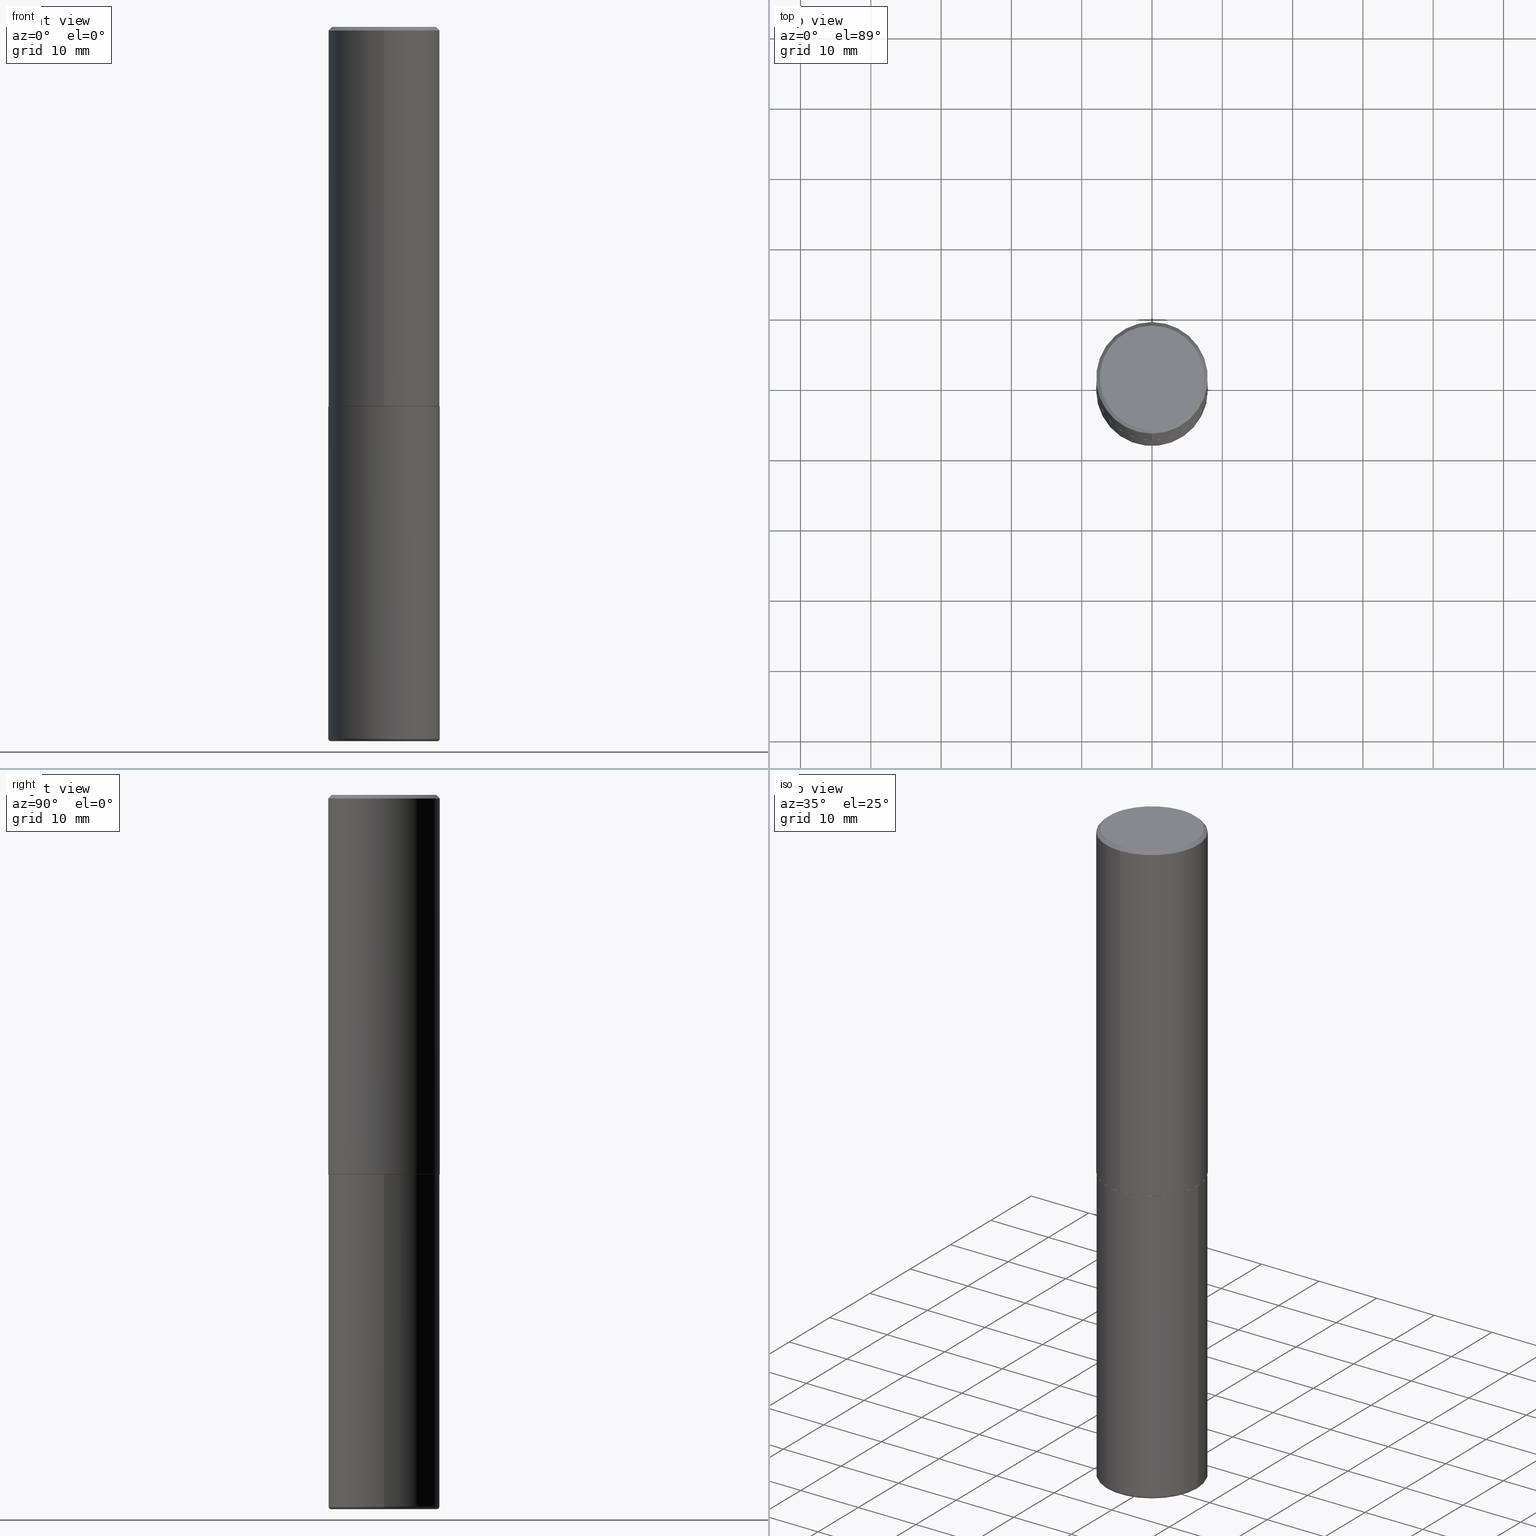
[diagram: canonical four-view strip — front | top / right | iso, engineering-drawing reading convention]
A machine part, canonical four-view strip (front | top / right | iso — engineering-drawing reading convention). The complete STEP part file that produces these views, byte-faithful:
ISO-10303-21;
HEADER;
FILE_DESCRIPTION (( 'STEP AP203' ),
    '1' );
FILE_NAME ('37580.STEP',
    '2024-03-02T04:50:06',
    ( '' ),
    ( '' ),
    'SwSTEP 2.0',
    'SolidWorks 2023',
    '' );
FILE_SCHEMA (( 'CONFIG_CONTROL_DESIGN' ));
ENDSEC;

DATA;
#1 = ORIENTED_EDGE ( 'NONE', *, *, #302, .F. ) ;
#2 = APPROVAL_STATUS ( 'not_yet_approved' ) ;
#3 = AXIS2_PLACEMENT_3D ( 'NONE', #131, #319, #252 ) ;
#4 = EDGE_LOOP ( 'NONE', ( #380, #281, #353, #29 ) ) ;
#5 = CC_DESIGN_PERSON_AND_ORGANIZATION_ASSIGNMENT ( #107, #232, ( #214 ) ) ;
#6 = CC_DESIGN_DATE_AND_TIME_ASSIGNMENT ( #393, #363, ( #15 ) ) ;
#7 = VERTEX_POINT ( 'NONE', #191 ) ;
#8 = PERSON_AND_ORGANIZATION_ROLE ( 'creator' ) ;
#9 = CARTESIAN_POINT ( 'NONE',  ( 5.192866564986985411E-29, -7.417781183046251262E-15, -2.123999999999999666 ) ) ;
#10 = DIMENSIONAL_EXPONENTS ( 1.000000000000000000, 0.000000000000000000, 0.000000000000000000, 0.000000000000000000, 0.000000000000000000, 0.000000000000000000, 0.000000000000000000 ) ;
#11 = ORIENTED_EDGE ( 'NONE', *, *, #367, .F. ) ;
#12 = VECTOR ( 'NONE', #348, 39.37007874015748143 ) ;
#13 = AXIS2_PLACEMENT_3D ( 'NONE', #9, #266, #390 ) ;
#14 = CARTESIAN_POINT ( 'NONE',  ( 9.745193192647769069E-29, -1.391355313528993407E-14, -3.984999999999999876 ) ) ;
#15 = PRODUCT_DEFINITION ( 'UNKNOWN', '', #214, #398 ) ;
#16 = DIRECTION ( 'NONE',  ( -6.982962677686266711E-15, -1.000000000000000000, 3.491481338843145583E-15 ) ) ;
#17 = CLOSED_SHELL ( 'NONE', ( #227, #181, #61, #386, #153, #185 ) ) ;
#18 = LINE ( 'NONE', #182, #309 ) ;
#19 = AXIS2_PLACEMENT_3D ( 'NONE', #172, #49, #148 ) ;
#20 = PRODUCT_DEFINITION_SHAPE ( 'NONE', 'NONE',  #15 ) ;
#21 = DIRECTION ( 'NONE',  ( -2.444852431726452894E-29, 3.492364022149836358E-15, 1.000000000000000000 ) ) ;
#22 = CARTESIAN_POINT ( 'NONE',  ( 9.745193192647769069E-29, -1.391355313528993407E-14, -3.984999999999999876 ) ) ;
#23 = CARTESIAN_POINT ( 'NONE',  ( -0.3125000000000000000, -8.446029440915494976E-15, -2.124999999999999556 ) ) ;
#24 = DIRECTION ( 'NONE',  ( 1.000000000000000000, -6.982962677686265133E-15, 0.000000000000000000 ) ) ;
#25 = CYLINDRICAL_SURFACE ( 'NONE', #146, 0.3125000000000000000 ) ;
#26 = DIRECTION ( 'NONE',  ( -2.445468806185136597E-29, 3.491481338843145583E-15, 1.000000000000000000 ) ) ;
#27 = ADVANCED_FACE ( 'NONE', ( #245 ), #92, .T. ) ;
#28 = APPLICATION_PROTOCOL_DEFINITION ( 'international standard', 'config_control_design', 1994, #46 ) ;
#29 = ORIENTED_EDGE ( 'NONE', *, *, #416, .T. ) ;
#30 = CONICAL_SURFACE ( 'NONE', #85, 0.3125000000000000000, 0.7853981633974471688 ) ;
#31 = FACE_OUTER_BOUND ( 'NONE', #68, .T. ) ;
#32 = DIRECTION ( 'NONE',  ( -6.982962677686265922E-15, -1.000000000000000000, 3.507991003100177457E-15 ) ) ;
#33 = DIRECTION ( 'NONE',  ( 2.444852431726452894E-29, -3.492364022149836358E-15, -1.000000000000000000 ) ) ;
#34 = EDGE_LOOP ( 'NONE', ( #329, #35, #129, #11 ) ) ;
#35 = ORIENTED_EDGE ( 'NONE', *, *, #162, .T. ) ;
#36 = CALENDAR_DATE ( 2024, 1, 3 ) ;
#37 = ORIENTED_EDGE ( 'NONE', *, *, #340, .F. ) ;
#38 = CC_DESIGN_APPROVAL ( #377, ( #214 ) ) ;
#39 = AXIS2_PLACEMENT_3D ( 'NONE', #157, #33, #283 ) ;
#40 = ORIENTED_EDGE ( 'NONE', *, *, #330, .F. ) ;
#41 = DIRECTION ( 'NONE',  ( 1.000000000000000000, -6.982962677686269077E-15, 0.000000000000000000 ) ) ;
#42 = ORIENTED_EDGE ( 'NONE', *, *, #103, .T. ) ;
#43 = DATE_AND_TIME ( #211, #263 ) ;
#44 = CLOSED_SHELL ( 'NONE', ( #170, #240, #324, #202, #267, #27, #402, #89 ) ) ;
#45 = AXIS2_PLACEMENT_3D ( 'NONE', #292, #300, #268 ) ;
#46 = APPLICATION_CONTEXT ( 'configuration controlled 3d designs of mechanical parts and assemblies' ) ;
#47 = PLANE ( 'NONE',  #156 ) ;
#48 =( GEOMETRIC_REPRESENTATION_CONTEXT ( 3 ) GLOBAL_UNCERTAINTY_ASSIGNED_CONTEXT ( ( #112 ) ) GLOBAL_UNIT_ASSIGNED_CONTEXT ( ( #417, #186, #183 ) ) REPRESENTATION_CONTEXT ( 'NONE', 'WORKASPACE' ) );
#49 = DIRECTION ( 'NONE',  ( -2.445468806185136597E-29, 3.491481338843145583E-15, 1.000000000000000000 ) ) ;
#50 = APPROVAL_STATUS ( 'not_yet_approved' ) ;
#51 = CIRCLE ( 'NONE', #45, 0.2974999999999999867 ) ;
#52 = FACE_OUTER_BOUND ( 'NONE', #392, .T. ) ;
#53 = AXIS2_PLACEMENT_3D ( 'NONE', #351, #154, #279 ) ;
#54 = CARTESIAN_POINT ( 'NONE',  ( -2.075300644325887493E-15, -0.2924999999999999822, 1.030311686326234990E-15 ) ) ;
#55 = PERSON_AND_ORGANIZATION ( #239, #298 ) ;
#56 = APPROVAL_PERSON_ORGANIZATION ( #291, #410, #259 ) ;
#57 = AXIS2_PLACEMENT_3D ( 'NONE', #117, #84, #304 ) ;
#58 = EDGE_CURVE ( 'NONE', #359, #189, #371, .T. ) ;
#59 = DIRECTION ( 'NONE',  ( 1.000000000000000000, -6.982962677686265133E-15, 0.000000000000000000 ) ) ;
#60 = DIRECTION ( 'NONE',  ( -2.444852431726452614E-29, 3.492364022149836358E-15, 1.000000000000000000 ) ) ;
#61 = ADVANCED_FACE ( 'NONE', ( #415 ), #91, .F. ) ;
#62 = ORIENTED_EDGE ( 'NONE', *, *, #246, .F. ) ;
#63 = APPROVAL ( #50, 'UNSPECIFIED' ) ;
#64 = ORIENTED_EDGE ( 'NONE', *, *, #162, .F. ) ;
#65 = EDGE_CURVE ( 'NONE', #151, #383, #412, .T. ) ;
#66 = LOCAL_TIME ( 23, 50, 6.000000000000000000, #256 ) ;
#67 =( LENGTH_UNIT ( ) NAMED_UNIT ( * ) SI_UNIT ( $, .METRE. ) );
#68 = EDGE_LOOP ( 'NONE', ( #76, #70, #258, #37 ) ) ;
#69 = ORIENTED_EDGE ( 'NONE', *, *, #302, .T. ) ;
#70 = ORIENTED_EDGE ( 'NONE', *, *, #355, .T. ) ;
#71 = VERTEX_POINT ( 'NONE', #215 ) ;
#72 = APPROVAL_DATE_TIME ( #265, #410 ) ;
#73 = AXIS2_PLACEMENT_3D ( 'NONE', #407, #21, #147 ) ;
#74 = EDGE_LOOP ( 'NONE', ( #224, #389, #171, #345 ) ) ;
#75 = CALENDAR_DATE ( 2024, 1, 3 ) ;
#76 = ORIENTED_EDGE ( 'NONE', *, *, #230, .F. ) ;
#77 = EDGE_CURVE ( 'NONE', #383, #151, #236, .T. ) ;
#78 = APPROVAL_PERSON_ORGANIZATION ( #200, #377, #327 ) ;
#79 = AXIS2_PLACEMENT_3D ( 'NONE', #373, #339, #88 ) ;
#80 = DIRECTION ( 'NONE',  ( -2.445468806185136597E-29, 3.491481338843145583E-15, 1.000000000000000000 ) ) ;
#81 = EDGE_CURVE ( 'NONE', #395, #123, #385, .T. ) ;
#82 = DIRECTION ( 'NONE',  ( 2.444852431726452894E-29, -3.492364022149836358E-15, -1.000000000000000000 ) ) ;
#83 = APPROVAL_PERSON_ORGANIZATION ( #207, #63, #336 ) ;
#84 = DIRECTION ( 'NONE',  ( -2.444852431726452894E-29, 3.492364022149836358E-15, 1.000000000000000000 ) ) ;
#85 = AXIS2_PLACEMENT_3D ( 'NONE', #143, #82, #335 ) ;
#86 = PRODUCT ( '37580', '37580', '', ( #128 ) ) ;
#87 = CARTESIAN_POINT ( 'NONE',  ( 2.213340621892763743E-15, 0.3114999999999925606, -2.125000000000000888 ) ) ;
#88 = DIRECTION ( 'NONE',  ( -6.982962677686265922E-15, -1.000000000000000000, 3.496765431890253764E-15 ) ) ;
#89 = ADVANCED_FACE ( 'NONE', ( #187 ), #152, .F. ) ;
#90 = CARTESIAN_POINT ( 'NONE',  ( 0.000000000000000000, 0.000000000000000000, 0.000000000000000000 ) ) ;
#91 = PLANE ( 'NONE',  #3 ) ;
#92 = CONICAL_SURFACE ( 'NONE', #223, 0.3114999999999999991, 0.7853981633975507526 ) ;
#93 = DIRECTION ( 'NONE',  ( 1.000000000000000000, -6.982962677686266711E-15, 4.876176775795936353E-29 ) ) ;
#94 = VERTEX_POINT ( 'NONE', #328 ) ;
#95 = ORIENTED_EDGE ( 'NONE', *, *, #217, .T. ) ;
#96 = DIRECTION ( 'NONE',  ( -2.445468806185136597E-29, 3.491481338843145583E-15, 1.000000000000000000 ) ) ;
#97 = ORIENTED_EDGE ( 'NONE', *, *, #136, .T. ) ;
#98 = LOCAL_TIME ( 23, 50, 6.000000000000000000, #321 ) ;
#99 = AXIS2_PLACEMENT_3D ( 'NONE', #274, #408, #366 ) ;
#100 = CARTESIAN_POINT ( 'NONE',  ( 2.220446049250313475E-15, 0.3125000000000001665, -1.091363756921824478E-15 ) ) ;
#101 = ORIENTED_EDGE ( 'NONE', *, *, #102, .T. ) ;
#102 = EDGE_CURVE ( 'NONE', #94, #197, #394, .T. ) ;
#103 = EDGE_CURVE ( 'NONE', #189, #297, #299, .T. ) ;
#104 = ORIENTED_EDGE ( 'NONE', *, *, #77, .F. ) ;
#105 = CC_DESIGN_APPROVAL ( #410, ( #15 ) ) ;
#106 = AXIS2_PLACEMENT_3D ( 'NONE', #228, #163, #41 ) ;
#107 = PERSON_AND_ORGANIZATION ( #239, #298 ) ;
#108 = ORIENTED_EDGE ( 'NONE', *, *, #257, .F. ) ;
#109 = EDGE_CURVE ( 'NONE', #221, #123, #127, .T. ) ;
#110 = SHAPE_DEFINITION_REPRESENTATION ( #20, #411 ) ;
#111 = DIRECTION ( 'NONE',  ( -2.445468806185136597E-29, 3.491481338843145583E-15, 1.000000000000000000 ) ) ;
#112 = UNCERTAINTY_MEASURE_WITH_UNIT (LENGTH_MEASURE( 1.000000000000000082E-05 ), #417, 'distance_accuracy_value', 'NONE');
#113 = LOCAL_TIME ( 23, 50, 6.000000000000000000, #369 ) ;
#114 = DIRECTION ( 'NONE',  ( 1.000000000000000000, -6.982962677686265922E-15, 4.883557194083112340E-29 ) ) ;
#115 = AXIS2_PLACEMENT_3D ( 'NONE', #159, #375, #24 ) ;
#116 = CC_DESIGN_PERSON_AND_ORGANIZATION_ASSIGNMENT ( #137, #201, ( #15 ) ) ;
#117 = CARTESIAN_POINT ( 'NONE',  ( 5.195311417418712329E-29, -7.421273547068401324E-15, -2.124999999999999556 ) ) ;
#118 = DIRECTION ( 'NONE',  ( 5.024295867788576727E-15, 0.7071067811866224018, 0.7071067811864726327 ) ) ;
#119 = DIRECTION ( 'NONE',  ( -6.982962677686265133E-15, -1.000000000000000000, 3.492364022149836753E-15 ) ) ;
#120 = VECTOR ( 'NONE', #60, 39.37007874015748143 ) ;
#121 = CYLINDRICAL_SURFACE ( 'NONE', #99, 0.3125000000000000000 ) ;
#122 = DIRECTION ( 'NONE',  ( -2.445468806185136597E-29, 3.491481338843145583E-15, 1.000000000000000000 ) ) ;
#123 = VERTEX_POINT ( 'NONE', #295 ) ;
#124 = PLANE ( 'NONE',  #179 ) ;
#125 = EDGE_LOOP ( 'NONE', ( #219, #248 ) ) ;
#126 = AXIS2_PLACEMENT_3D ( 'NONE', #130, #122, #59 ) ;
#127 = CIRCLE ( 'NONE', #384, 0.3125000000000000000 ) ;
#128 = MECHANICAL_CONTEXT ( 'NONE', #46, 'mechanical' ) ;
#129 = ORIENTED_EDGE ( 'NONE', *, *, #314, .T. ) ;
#130 = CARTESIAN_POINT ( 'NONE',  ( 5.196621213143414147E-29, -7.419397845041682046E-15, -2.124999999999999556 ) ) ;
#131 = CARTESIAN_POINT ( 'NONE',  ( 5.196621213143414147E-29, -7.419397845041682046E-15, -2.124999999999999556 ) ) ;
#132 = DIRECTION ( 'NONE',  ( -2.444852431726452894E-29, 3.492364022149836358E-15, 1.000000000000000000 ) ) ;
#133 = CIRCLE ( 'NONE', #192, 0.01500000000000014690 ) ;
#134 = ORIENTED_EDGE ( 'NONE', *, *, #81, .F. ) ;
#135 = ORIENTED_EDGE ( 'NONE', *, *, #416, .F. ) ;
#136 = EDGE_CURVE ( 'NONE', #71, #395, #144, .T. ) ;
#137 = PERSON_AND_ORGANIZATION ( #239, #298 ) ;
#138 = EDGE_LOOP ( 'NONE', ( #362, #194 ) ) ;
#139 = AXIS2_PLACEMENT_3D ( 'NONE', #193, #160, #286 ) ;
#140 = APPLICATION_PROTOCOL_DEFINITION ( 'international standard', 'config_control_design', 1994, #199 ) ;
#141 = DIRECTION ( 'NONE',  ( -2.445468806185136877E-29, 3.491481338843145188E-15, 1.000000000000000000 ) ) ;
#142 = DIRECTION ( 'NONE',  ( 1.000000000000000000, -6.982962677686199657E-15, 0.000000000000000000 ) ) ;
#143 = CARTESIAN_POINT ( 'NONE',  ( 4.889704863452922148E-31, -6.984728044299695791E-17, -0.02000000000000006981 ) ) ;
#144 = CIRCLE ( 'NONE', #13, 0.3125000000000002776 ) ;
#145 = EDGE_CURVE ( 'NONE', #197, #94, #51, .T. ) ;
#146 = AXIS2_PLACEMENT_3D ( 'NONE', #90, #96, #93 ) ;
#147 = DIRECTION ( 'NONE',  ( -6.982962677686265133E-15, -1.000000000000000000, 3.492364022149836753E-15 ) ) ;
#148 = DIRECTION ( 'NONE',  ( 1.000000000000000000, -6.982962677686269077E-15, 0.000000000000000000 ) ) ;
#149 = DIRECTION ( 'NONE',  ( -6.982962677686265133E-15, -1.000000000000000000, 3.492364022149836358E-15 ) ) ;
#150 = DIRECTION ( 'NONE',  ( -6.982962677686265922E-15, -1.000000000000000000, 3.492364022149836358E-15 ) ) ;
#151 = VERTEX_POINT ( 'NONE', #397 ) ;
#152 = PLANE ( 'NONE',  #378 ) ;
#153 = ADVANCED_FACE ( 'NONE', ( #400 ), #352, .T. ) ;
#154 = DIRECTION ( 'NONE',  ( -2.444852431726452894E-29, 3.492364022149836358E-15, 1.000000000000000000 ) ) ;
#155 = CARTESIAN_POINT ( 'NONE',  ( 5.195311417418712329E-29, -7.421273547068401324E-15, -2.124999999999999556 ) ) ;
#156 = AXIS2_PLACEMENT_3D ( 'NONE', #210, #306, #238 ) ;
#157 = CARTESIAN_POINT ( 'NONE',  ( 4.889704863452922148E-31, -6.984728044299695791E-17, -0.02000000000000006981 ) ) ;
#158 = CARTESIAN_POINT ( 'NONE',  ( 9.745193192647769069E-29, -1.391355313528993407E-14, -3.984999999999999876 ) ) ;
#159 = CARTESIAN_POINT ( 'NONE',  ( 5.196621213143414147E-29, -7.419397845041682046E-15, -2.124999999999999556 ) ) ;
#160 = DIRECTION ( 'NONE',  ( -2.444852431726452894E-29, 3.492364022149836358E-15, 1.000000000000000000 ) ) ;
#161 = ORIENTED_EDGE ( 'NONE', *, *, #65, .F. ) ;
#162 = EDGE_CURVE ( 'NONE', #189, #359, #280, .T. ) ;
#163 = DIRECTION ( 'NONE',  ( -2.445468806185136597E-29, 3.491481338843145583E-15, 1.000000000000000000 ) ) ;
#164 = EDGE_LOOP ( 'NONE', ( #331, #42, #40, #226 ) ) ;
#165 = AXIS2_PLACEMENT_3D ( 'NONE', #22, #80, #114 ) ;
#166 = DIRECTION ( 'NONE',  ( -6.982962677686265133E-15, -1.000000000000000000, 3.496765431890256920E-15 ) ) ;
#167 = ORIENTED_EDGE ( 'NONE', *, *, #77, .T. ) ;
#168 = DATE_AND_TIME ( #388, #66 ) ;
#169 = CARTESIAN_POINT ( 'NONE',  ( -0.3125000000000000000, 2.220446049250313081E-15, -1.537167215704658232E-29 ) ) ;
#170 = ADVANCED_FACE ( 'NONE', ( #237 ), #282, .T. ) ;
#171 = ORIENTED_EDGE ( 'NONE', *, *, #136, .F. ) ;
#172 = CARTESIAN_POINT ( 'NONE',  ( 9.745193192647769069E-29, -1.391355313528993407E-14, -3.984999999999999876 ) ) ;
#173 = DATE_AND_TIME ( #364, #113 ) ;
#174 = DIRECTION ( 'NONE',  ( -2.444852431726452894E-29, 3.492364022149836358E-15, 1.000000000000000000 ) ) ;
#175 = CC_DESIGN_PERSON_AND_ORGANIZATION_ASSIGNMENT ( #55, #356, ( #86 ) ) ;
#176 = CARTESIAN_POINT ( 'NONE',  ( -2.150299018297948745E-46, 3.071607443834507134E-32, 8.795209847407834549E-18 ) ) ;
#177 = DIRECTION ( 'NONE',  ( 7.105427357601001859E-15, 1.000000000000000000, -3.491481338843145583E-15 ) ) ;
#178 = VECTOR ( 'NONE', #310, 39.37007874015748143 ) ;
#179 = AXIS2_PLACEMENT_3D ( 'NONE', #285, #413, #150 ) ;
#180 = CYLINDRICAL_SURFACE ( 'NONE', #275, 0.3125000000000001665 ) ;
#181 = ADVANCED_FACE ( 'NONE', ( #52 ), #337, .T. ) ;
#182 = CARTESIAN_POINT ( 'NONE',  ( -2.182175836776959136E-15, -0.3125000000000001665, 1.091363756921824478E-15 ) ) ;
#183 =( NAMED_UNIT ( * ) SI_UNIT ( $, .STERADIAN. ) SOLID_ANGLE_UNIT ( ) );
#184 = CIRCLE ( 'NONE', #73, 0.2924999999999999822 ) ;
#185 = ADVANCED_FACE ( 'NONE', ( #370 ), #47, .T. ) ;
#186 =( NAMED_UNIT ( * ) PLANE_ANGLE_UNIT ( ) SI_UNIT ( $, .RADIAN. ) );
#187 = FACE_OUTER_BOUND ( 'NONE', #138, .T. ) ;
#188 = DIRECTION ( 'NONE',  ( 0.000000000000000000, 0.000000000000000000, 1.000000000000000000 ) ) ;
#189 = VERTEX_POINT ( 'NONE', #368 ) ;
#190 = CARTESIAN_POINT ( 'NONE',  ( -2.143905624303602824E-15, -0.3125000000000000555, -0.01999999999999897693 ) ) ;
#191 = CARTESIAN_POINT ( 'NONE',  ( 2.112346210000095838E-15, 0.2924999999999999822, -1.012721266631419361E-15 ) ) ;
#192 = AXIS2_PLACEMENT_3D ( 'NONE', #303, #16, #142 ) ;
#193 = CARTESIAN_POINT ( 'NONE',  ( 5.195311417418712329E-29, -7.421273547068401324E-15, -2.124999999999999556 ) ) ;
#194 = ORIENTED_EDGE ( 'NONE', *, *, #230, .T. ) ;
#195 = APPROVAL_STATUS ( 'not_yet_approved' ) ;
#196 = EDGE_LOOP ( 'NONE', ( #134, #233, #326, #135 ) ) ;
#197 = VERTEX_POINT ( 'NONE', #276 ) ;
#198 = VECTOR ( 'NONE', #141, 39.37007874015748143 ) ;
#199 = APPLICATION_CONTEXT ( 'configuration controlled 3d designs of mechanical parts and assemblies' ) ;
#200 = PERSON_AND_ORGANIZATION ( #239, #298 ) ;
#201 = PERSON_AND_ORGANIZATION_ROLE ( 'creator' ) ;
#202 = ADVANCED_FACE ( 'NONE', ( #209 ), #30, .T. ) ;
#203 = EDGE_LOOP ( 'NONE', ( #287, #381 ) ) ;
#204 = DIRECTION ( 'NONE',  ( 6.982962677686265922E-15, 1.000000000000000000, -3.492364022149836358E-15 ) ) ;
#205 = COORDINATED_UNIVERSAL_TIME_OFFSET ( 5, 0, .BEHIND. ) ;
#206 = AXIS2_PLACEMENT_3D ( 'NONE', #243, #177, #374 ) ;
#207 = PERSON_AND_ORGANIZATION ( #239, #298 ) ;
#208 = CARTESIAN_POINT ( 'NONE',  ( 0.000000000000000000, 0.000000000000000000, 0.000000000000000000 ) ) ;
#209 = FACE_OUTER_BOUND ( 'NONE', #4, .T. ) ;
#210 = CARTESIAN_POINT ( 'NONE',  ( 9.781875224740546387E-29, -1.396592535537258233E-14, -4.000000000000000000 ) ) ;
#211 = CALENDAR_DATE ( 2024, 1, 3 ) ;
#212 = CARTESIAN_POINT ( 'NONE',  ( 0.000000000000000000, 0.000000000000000000, 0.000000000000000000 ) ) ;
#213 = DIRECTION ( 'NONE',  ( -4.937700262165053702E-15, -0.7071067811866175168, 0.7071067811864775177 ) ) ;
#214 = PRODUCT_DEFINITION_FORMATION_WITH_SPECIFIED_SOURCE ( 'ANY', '', #86, .NOT_KNOWN. ) ;
#215 = CARTESIAN_POINT ( 'NONE',  ( -2.182175836776908254E-15, -0.3125000000000077161, -2.123999999999998334 ) ) ;
#216 = AXIS2_PLACEMENT_3D ( 'NONE', #158, #26, #284 ) ;
#217 = EDGE_CURVE ( 'NONE', #197, #189, #247, .T. ) ;
#218 = CARTESIAN_POINT ( 'NONE',  ( 0.3125000000000000000, -9.601573681818640393E-15, -2.124999999999999556 ) ) ;
#219 = ORIENTED_EDGE ( 'NONE', *, *, #330, .T. ) ;
#220 = CARTESIAN_POINT ( 'NONE',  ( 2.220446049250340297E-15, 0.3124999999999928391, -2.124000000000000554 ) ) ;
#221 = VERTEX_POINT ( 'NONE', #332 ) ;
#222 = FACE_OUTER_BOUND ( 'NONE', #320, .T. ) ;
#223 = AXIS2_PLACEMENT_3D ( 'NONE', #155, #376, #32 ) ;
#224 = ORIENTED_EDGE ( 'NONE', *, *, #65, .T. ) ;
#225 = CIRCLE ( 'NONE', #53, 0.3125000000000000000 ) ;
#226 = ORIENTED_EDGE ( 'NONE', *, *, #314, .F. ) ;
#227 = ADVANCED_FACE ( 'NONE', ( #405 ), #121, .T. ) ;
#228 = CARTESIAN_POINT ( 'NONE',  ( 9.781875224740546387E-29, -1.396592535537258233E-14, -4.000000000000000000 ) ) ;
#229 = CC_DESIGN_PERSON_AND_ORGANIZATION_ASSIGNMENT ( #294, #8, ( #214 ) ) ;
#230 = EDGE_CURVE ( 'NONE', #261, #7, #184, .T. ) ;
#231 = AXIS2_PLACEMENT_3D ( 'NONE', #14, #111, #235 ) ;
#232 = PERSON_AND_ORGANIZATION_ROLE ( 'design_supplier' ) ;
#233 = ORIENTED_EDGE ( 'NONE', *, *, #257, .T. ) ;
#234 = SECURITY_CLASSIFICATION_LEVEL ( 'unclassified' ) ;
#235 = DIRECTION ( 'NONE',  ( 1.000000000000000000, -6.982962677686265922E-15, 4.883557194083112340E-29 ) ) ;
#236 = CIRCLE ( 'NONE', #242, 0.3114999999999999991 ) ;
#237 = FACE_OUTER_BOUND ( 'NONE', #74, .T. ) ;
#238 = DIRECTION ( 'NONE',  ( -1.000000000000000000, 6.982962677686265922E-15, -4.876176775795935793E-29 ) ) ;
#239 = PERSON ( 'UNSPECIFIED', 'UNSPECIFIED', 'UNSPECIFIED', ('UNSPECIFIED'), ('UNSPECIFIED'), ('UNSPECIFIED') ) ;
#240 = ADVANCED_FACE ( 'NONE', ( #338 ), #180, .T. ) ;
#241 = DIRECTION ( 'NONE',  ( -6.982962677686265133E-15, -1.000000000000000000, 3.492364022149836358E-15 ) ) ;
#242 = AXIS2_PLACEMENT_3D ( 'NONE', #418, #132, #255 ) ;
#243 = CARTESIAN_POINT ( 'NONE',  ( -0.2974999999999999867, -1.179968849640363532E-14, -3.984999999999999876 ) ) ;
#244 = CYLINDRICAL_SURFACE ( 'NONE', #358, 0.3125000000000001665 ) ;
#245 = FACE_OUTER_BOUND ( 'NONE', #323, .T. ) ;
#246 = EDGE_CURVE ( 'NONE', #383, #395, #406, .T. ) ;
#247 = CIRCLE ( 'NONE', #206, 0.01500000000000014690 ) ;
#248 = ORIENTED_EDGE ( 'NONE', *, *, #367, .T. ) ;
#249 = EDGE_CURVE ( 'NONE', #7, #261, #372, .T. ) ;
#250 = LINE ( 'NONE', #315, #178 ) ;
#251 = AXIS2_PLACEMENT_3D ( 'NONE', #379, #188, #312 ) ;
#252 = DIRECTION ( 'NONE',  ( -1.000000000000000000, 6.982962677686265922E-15, -4.876176775795935793E-29 ) ) ;
#253 = CC_DESIGN_APPROVAL ( #63, ( #278 ) ) ;
#254 = CARTESIAN_POINT ( 'NONE',  ( 2.216893335571564642E-15, 0.3114999999999925606, -2.125000000000000888 ) ) ;
#255 = DIRECTION ( 'NONE',  ( -6.982962677686265922E-15, -1.000000000000000000, 3.507991003100177457E-15 ) ) ;
#256 = COORDINATED_UNIVERSAL_TIME_OFFSET ( 5, 0, .BEHIND. ) ;
#257 = EDGE_CURVE ( 'NONE', #395, #71, #305, .T. ) ;
#258 = ORIENTED_EDGE ( 'NONE', *, *, #109, .T. ) ;
#259 = APPROVAL_ROLE ( '' ) ;
#260 = CARTESIAN_POINT ( 'NONE',  ( 2.042516583223232540E-15, 0.2924999999999999822, -1.017118871555123169E-15 ) ) ;
#261 = VERTEX_POINT ( 'NONE', #54 ) ;
#262 = COORDINATED_UNIVERSAL_TIME_OFFSET ( 5, 0, .BEHIND. ) ;
#263 = LOCAL_TIME ( 23, 50, 6.000000000000000000, #205 ) ;
#264 = ORIENTED_EDGE ( 'NONE', *, *, #217, .F. ) ;
#265 = DATE_AND_TIME ( #75, #98 ) ;
#266 = DIRECTION ( 'NONE',  ( -2.444852431726452894E-29, 3.492364022149836358E-15, 1.000000000000000000 ) ) ;
#267 = ADVANCED_FACE ( 'NONE', ( #271 ), #244, .T. ) ;
#268 = DIRECTION ( 'NONE',  ( 1.000000000000000000, -6.982962677686269077E-15, 0.000000000000000000 ) ) ;
#269 = LINE ( 'NONE', #401, #365 ) ;
#270 = VECTOR ( 'NONE', #213, 39.37007874015748143 ) ;
#271 = FACE_OUTER_BOUND ( 'NONE', #196, .T. ) ;
#272 = DIRECTION ( 'NONE',  ( -2.444852431726452894E-29, 3.492364022149836358E-15, 1.000000000000000000 ) ) ;
#273 = EDGE_CURVE ( 'NONE', #71, #221, #18, .T. ) ;
#274 = CARTESIAN_POINT ( 'NONE',  ( 0.000000000000000000, 0.000000000000000000, 0.000000000000000000 ) ) ;
#275 = AXIS2_PLACEMENT_3D ( 'NONE', #212, #272, #241 ) ;
#276 = CARTESIAN_POINT ( 'NONE',  ( -0.2974999999999999867, -1.177258390126295229E-14, -4.000000000000000000 ) ) ;
#277 = EDGE_LOOP ( 'NONE', ( #264, #290, #69, #64 ) ) ;
#278 = SECURITY_CLASSIFICATION ( '', '', #234 ) ;
#279 = DIRECTION ( 'NONE',  ( -6.982962677686265133E-15, -1.000000000000000000, 3.496765431890256920E-15 ) ) ;
#280 = CIRCLE ( 'NONE', #19, 0.3125000000000000000 ) ;
#281 = ORIENTED_EDGE ( 'NONE', *, *, #249, .F. ) ;
#282 = CONICAL_SURFACE ( 'NONE', #57, 0.3114999999999999991, 0.7853981633975507526 ) ;
#283 = DIRECTION ( 'NONE',  ( 6.982962677686265133E-15, 1.000000000000000000, -3.496765431890256920E-15 ) ) ;
#284 = DIRECTION ( 'NONE',  ( 1.000000000000000000, -6.982962677686269077E-15, 0.000000000000000000 ) ) ;
#285 = CARTESIAN_POINT ( 'NONE',  ( 5.195311417418712329E-29, -7.421273547068401324E-15, -2.124999999999999556 ) ) ;
#286 = DIRECTION ( 'NONE',  ( -6.982962677686265922E-15, -1.000000000000000000, 3.507991003100177457E-15 ) ) ;
#287 = ORIENTED_EDGE ( 'NONE', *, *, #102, .F. ) ;
#288 = CIRCLE ( 'NONE', #126, 0.3125000000000000000 ) ;
#289 = CONICAL_SURFACE ( 'NONE', #39, 0.3125000000000000000, 0.7853981633974471688 ) ;
#290 = ORIENTED_EDGE ( 'NONE', *, *, #145, .T. ) ;
#291 = PERSON_AND_ORGANIZATION ( #239, #298 ) ;
#292 = CARTESIAN_POINT ( 'NONE',  ( 9.781875224740546387E-29, -1.396592535537258233E-14, -4.000000000000000000 ) ) ;
#293 = ORIENTED_EDGE ( 'NONE', *, *, #109, .F. ) ;
#294 = PERSON_AND_ORGANIZATION ( #239, #298 ) ;
#295 = CARTESIAN_POINT ( 'NONE',  ( 2.182175836776958741E-15, 0.3124999999999999445, -0.02000000000000116268 ) ) ;
#296 = PRODUCT_RELATED_PRODUCT_CATEGORY ( 'detail', '', ( #86 ) ) ;
#297 = VERTEX_POINT ( 'NONE', #23 ) ;
#298 = ORGANIZATION ( 'UNSPECIFIED', 'UNSPECIFIED', '' ) ;
#299 = LINE ( 'NONE', #169, #198 ) ;
#300 = DIRECTION ( 'NONE',  ( -2.445468806185136597E-29, 3.491481338843145583E-15, 1.000000000000000000 ) ) ;
#301 = APPROVAL_DATE_TIME ( #173, #63 ) ;
#302 = EDGE_CURVE ( 'NONE', #94, #359, #133, .T. ) ;
#303 = CARTESIAN_POINT ( 'NONE',  ( 0.2974999999999999867, -1.599098453190160062E-14, -3.984999999999999876 ) ) ;
#304 = DIRECTION ( 'NONE',  ( -6.982962677686265922E-15, -1.000000000000000000, 3.507991003100177457E-15 ) ) ;
#305 = CIRCLE ( 'NONE', #79, 0.3125000000000002776 ) ;
#306 = DIRECTION ( 'NONE',  ( 2.438088387897960049E-29, -3.491481338843145188E-15, -1.000000000000000000 ) ) ;
#307 = DIRECTION ( 'NONE',  ( -2.444852431726452894E-29, 3.492364022149836358E-15, 1.000000000000000000 ) ) ;
#308 = DIRECTION ( 'NONE',  ( -2.444852431726452614E-29, 3.492364022149836358E-15, 1.000000000000000000 ) ) ;
#309 = VECTOR ( 'NONE', #308, 39.37007874015748143 ) ;
#310 = DIRECTION ( 'NONE',  ( 4.937700262164541731E-15, 0.7071067811865442421, -0.7071067811865507924 ) ) ;
#311 = LINE ( 'NONE', #344, #270 ) ;
#312 = DIRECTION ( 'NONE',  ( 1.000000000000000000, 0.000000000000000000, 0.000000000000000000 ) ) ;
#313 = CC_DESIGN_DATE_AND_TIME_ASSIGNMENT ( #43, #404, ( #278 ) ) ;
#314 = EDGE_CURVE ( 'NONE', #359, #409, #269, .T. ) ;
#315 = CARTESIAN_POINT ( 'NONE',  ( 2.182175836776958741E-15, 0.3124999999999999445, -0.02000000000000116268 ) ) ;
#316 = CIRCLE ( 'NONE', #115, 0.3125000000000000000 ) ;
#317 = ORIENTED_EDGE ( 'NONE', *, *, #58, .F. ) ;
#318 = LENGTH_MEASURE_WITH_UNIT ( LENGTH_MEASURE( 0.02539999999999999897 ), #67 );
#319 = DIRECTION ( 'NONE',  ( 2.438088387897960049E-29, -3.491481338843145188E-15, -1.000000000000000000 ) ) ;
#320 = EDGE_LOOP ( 'NONE', ( #161, #104 ) ) ;
#321 = COORDINATED_UNIVERSAL_TIME_OFFSET ( 5, 0, .BEHIND. ) ;
#322 = ORIENTED_EDGE ( 'NONE', *, *, #273, .F. ) ;
#323 = EDGE_LOOP ( 'NONE', ( #62, #167, #349, #108 ) ) ;
#324 = ADVANCED_FACE ( 'NONE', ( #31 ), #289, .T. ) ;
#325 = DIRECTION ( 'NONE',  ( 2.444852431726452333E-29, -3.492364022149836358E-15, -1.000000000000000000 ) ) ;
#326 = ORIENTED_EDGE ( 'NONE', *, *, #273, .T. ) ;
#327 = APPROVAL_ROLE ( '' ) ;
#328 = CARTESIAN_POINT ( 'NONE',  ( 0.2974999999999999867, -1.604335675198424731E-14, -4.000000000000000000 ) ) ;
#329 = ORIENTED_EDGE ( 'NONE', *, *, #103, .F. ) ;
#330 = EDGE_CURVE ( 'NONE', #409, #297, #316, .T. ) ;
#331 = ORIENTED_EDGE ( 'NONE', *, *, #58, .T. ) ;
#332 = CARTESIAN_POINT ( 'NONE',  ( -2.143905624303602824E-15, -0.3125000000000000555, -0.01999999999999897693 ) ) ;
#333 = EDGE_CURVE ( 'NONE', #151, #71, #311, .T. ) ;
#334 = DIRECTION ( 'NONE',  ( -2.445468806185136877E-29, 3.491481338843145188E-15, 1.000000000000000000 ) ) ;
#335 = DIRECTION ( 'NONE',  ( 6.982962677686265133E-15, 1.000000000000000000, -3.496765431890256920E-15 ) ) ;
#336 = APPROVAL_ROLE ( '' ) ;
#337 = TOROIDAL_SURFACE ( 'NONE', #165, 0.2974999999999999867, 0.01500000000000012955 ) ;
#338 = FACE_OUTER_BOUND ( 'NONE', #354, .T. ) ;
#339 = DIRECTION ( 'NONE',  ( -2.444852431726452894E-29, 3.492364022149836358E-15, 1.000000000000000000 ) ) ;
#340 = EDGE_CURVE ( 'NONE', #7, #123, #250, .T. ) ;
#341 = CC_DESIGN_SECURITY_CLASSIFICATION ( #278, ( #214 ) ) ;
#342 = MANIFOLD_SOLID_BREP ( 'Body-Move/Copy2[1]', #17 ) ;
#343 = AXIS2_PLACEMENT_3D ( 'NONE', #176, #307, #119 ) ;
#344 = CARTESIAN_POINT ( 'NONE',  ( -2.175192874099219874E-15, -0.3115000000000074376, -2.124999999999998668 ) ) ;
#345 = ORIENTED_EDGE ( 'NONE', *, *, #333, .F. ) ;
#346 = FACE_OUTER_BOUND ( 'NONE', #34, .T. ) ;
#347 = MANIFOLD_SOLID_BREP ( 'Body-Move/Copy2[2]', #44 ) ;
#348 = DIRECTION ( 'NONE',  ( -4.851104656540957964E-15, -0.7071067811865491270, -0.7071067811865459074 ) ) ;
#349 = ORIENTED_EDGE ( 'NONE', *, *, #333, .T. ) ;
#350 = LOCAL_TIME ( 23, 50, 6.000000000000000000, #262 ) ;
#351 = CARTESIAN_POINT ( 'NONE',  ( 4.889704863452922148E-31, -6.984728044299695791E-17, -0.02000000000000006981 ) ) ;
#352 = TOROIDAL_SURFACE ( 'NONE', #231, 0.2974999999999999867, 0.01500000000000012955 ) ;
#353 = ORIENTED_EDGE ( 'NONE', *, *, #340, .T. ) ;
#354 = EDGE_LOOP ( 'NONE', ( #97, #387, #293, #322 ) ) ;
#355 = EDGE_CURVE ( 'NONE', #261, #221, #414, .T. ) ;
#356 = PERSON_AND_ORGANIZATION_ROLE ( 'design_owner' ) ;
#357 = DIRECTION ( 'NONE',  ( -2.444852431726452894E-29, 3.492364022149836358E-15, 1.000000000000000000 ) ) ;
#358 = AXIS2_PLACEMENT_3D ( 'NONE', #208, #174, #149 ) ;
#359 = VERTEX_POINT ( 'NONE', #382 ) ;
#360 = PERSON_AND_ORGANIZATION ( #239, #298 ) ;
#361 = CARTESIAN_POINT ( 'NONE',  ( 4.889704863452922148E-31, -6.984728044299695791E-17, -0.02000000000000006981 ) ) ;
#362 = ORIENTED_EDGE ( 'NONE', *, *, #249, .T. ) ;
#363 = DATE_TIME_ROLE ( 'creation_date' ) ;
#364 = CALENDAR_DATE ( 2024, 1, 3 ) ;
#365 = VECTOR ( 'NONE', #334, 39.37007874015748143 ) ;
#366 = DIRECTION ( 'NONE',  ( 1.000000000000000000, -6.982962677686266711E-15, 4.876176775795936353E-29 ) ) ;
#367 = EDGE_CURVE ( 'NONE', #297, #409, #288, .T. ) ;
#368 = CARTESIAN_POINT ( 'NONE',  ( -0.3125000000000000555, -1.169310708603962099E-14, -3.984999999999999876 ) ) ;
#369 = COORDINATED_UNIVERSAL_TIME_OFFSET ( 5, 0, .BEHIND. ) ;
#370 = FACE_OUTER_BOUND ( 'NONE', #203, .T. ) ;
#371 = CIRCLE ( 'NONE', #216, 0.3125000000000000000 ) ;
#372 = CIRCLE ( 'NONE', #343, 0.2924999999999999822 ) ;
#373 = CARTESIAN_POINT ( 'NONE',  ( 5.192866564986985411E-29, -7.417781183046251262E-15, -2.123999999999999666 ) ) ;
#374 = DIRECTION ( 'NONE',  ( -1.000000000000000000, 7.105427357601050768E-15, 0.000000000000000000 ) ) ;
#375 = DIRECTION ( 'NONE',  ( -2.445468806185136597E-29, 3.491481338843145583E-15, 1.000000000000000000 ) ) ;
#376 = DIRECTION ( 'NONE',  ( -2.444852431726452894E-29, 3.492364022149836358E-15, 1.000000000000000000 ) ) ;
#377 = APPROVAL ( #2, 'UNSPECIFIED' ) ;
#378 = AXIS2_PLACEMENT_3D ( 'NONE', #260, #325, #204 ) ;
#379 = CARTESIAN_POINT ( 'NONE',  ( 0.000000000000000000, 0.000000000000000000, 0.000000000000000000 ) ) ;
#380 = ORIENTED_EDGE ( 'NONE', *, *, #355, .F. ) ;
#381 = ORIENTED_EDGE ( 'NONE', *, *, #145, .F. ) ;
#382 = CARTESIAN_POINT ( 'NONE',  ( 0.3125000000000000555, -1.609572897206689399E-14, -3.984999999999999876 ) ) ;
#383 = VERTEX_POINT ( 'NONE', #254 ) ;
#384 = AXIS2_PLACEMENT_3D ( 'NONE', #361, #357, #166 ) ;
#385 = LINE ( 'NONE', #100, #120 ) ;
#386 = ADVANCED_FACE ( 'NONE', ( #346 ), #25, .T. ) ;
#387 = ORIENTED_EDGE ( 'NONE', *, *, #81, .T. ) ;
#388 = CALENDAR_DATE ( 2024, 1, 3 ) ;
#389 = ORIENTED_EDGE ( 'NONE', *, *, #246, .T. ) ;
#390 = DIRECTION ( 'NONE',  ( -6.982962677686265922E-15, -1.000000000000000000, 3.496765431890253764E-15 ) ) ;
#391 = CC_DESIGN_PERSON_AND_ORGANIZATION_ASSIGNMENT ( #360, #399, ( #278 ) ) ;
#392 = EDGE_LOOP ( 'NONE', ( #101, #95, #317, #1 ) ) ;
#393 = DATE_AND_TIME ( #36, #350 ) ;
#394 = CIRCLE ( 'NONE', #106, 0.2974999999999999867 ) ;
#395 = VERTEX_POINT ( 'NONE', #220 ) ;
#396 = APPROVAL_DATE_TIME ( #168, #377 ) ;
#397 = CARTESIAN_POINT ( 'NONE',  ( -2.175192874099219874E-15, -0.3115000000000074376, -2.124999999999998668 ) ) ;
#398 = DESIGN_CONTEXT ( 'detailed design', #199, 'design' ) ;
#399 = PERSON_AND_ORGANIZATION_ROLE ( 'classification_officer' ) ;
#400 = FACE_OUTER_BOUND ( 'NONE', #277, .T. ) ;
#401 = CARTESIAN_POINT ( 'NONE',  ( 0.3125000000000000000, -2.182175836776958347E-15, 1.523805242436230075E-29 ) ) ;
#402 = ADVANCED_FACE ( 'NONE', ( #222 ), #124, .F. ) ;
#403 = VECTOR ( 'NONE', #118, 39.37007874015748143 ) ;
#404 = DATE_TIME_ROLE ( 'classification_date' ) ;
#405 = FACE_OUTER_BOUND ( 'NONE', #164, .T. ) ;
#406 = LINE ( 'NONE', #87, #403 ) ;
#407 = CARTESIAN_POINT ( 'NONE',  ( -2.150299018297948745E-46, 3.071607443834507134E-32, 8.795209847407834549E-18 ) ) ;
#408 = DIRECTION ( 'NONE',  ( -2.445468806185136597E-29, 3.491481338843145583E-15, 1.000000000000000000 ) ) ;
#409 = VERTEX_POINT ( 'NONE', #218 ) ;
#410 = APPROVAL ( #195, 'UNSPECIFIED' ) ;
#411 = ADVANCED_BREP_SHAPE_REPRESENTATION ( '37580', ( #342, #347, #251 ), #48 ) ;
#412 = CIRCLE ( 'NONE', #139, 0.3114999999999999991 ) ;
#413 = DIRECTION ( 'NONE',  ( -2.444852431726452333E-29, 3.492364022149836358E-15, 1.000000000000000000 ) ) ;
#414 = LINE ( 'NONE', #190, #12 ) ;
#415 = FACE_OUTER_BOUND ( 'NONE', #125, .T. ) ;
#416 = EDGE_CURVE ( 'NONE', #123, #221, #225, .T. ) ;
#417 =( CONVERSION_BASED_UNIT ( 'INCH', #318 ) LENGTH_UNIT ( ) NAMED_UNIT ( #10 ) );
#418 = CARTESIAN_POINT ( 'NONE',  ( 5.195311417418712329E-29, -7.421273547068401324E-15, -2.124999999999999556 ) ) ;
ENDSEC;
END-ISO-10303-21;
